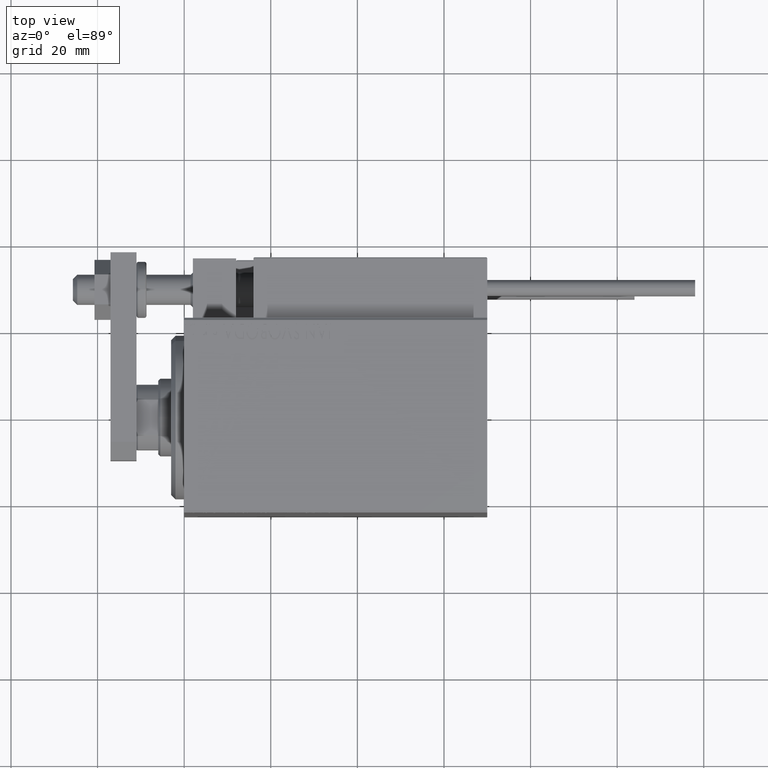
[diagram: clean part render]
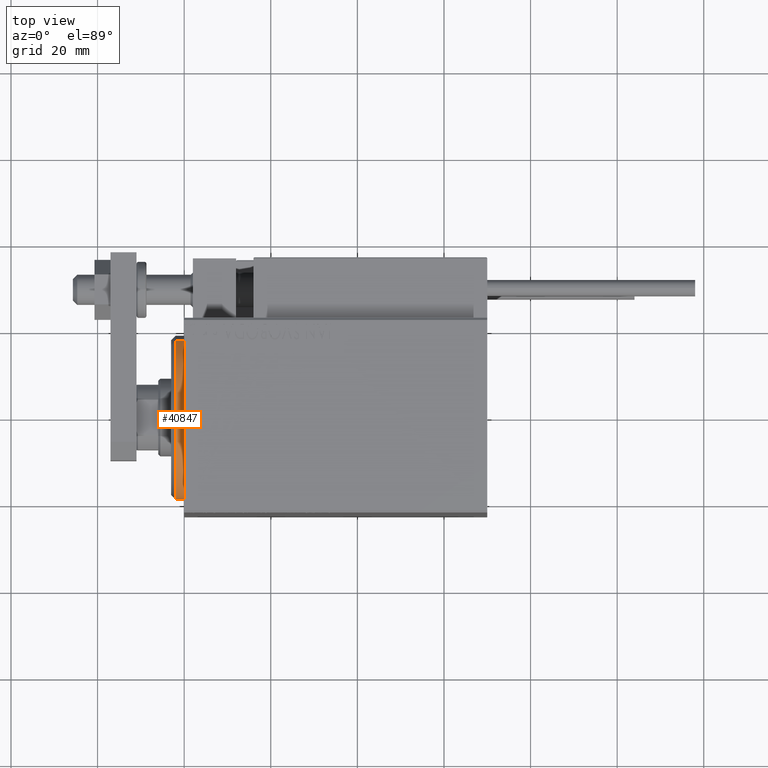
[diagram: same view with one face highlighted and labeled with its STEP entity id]
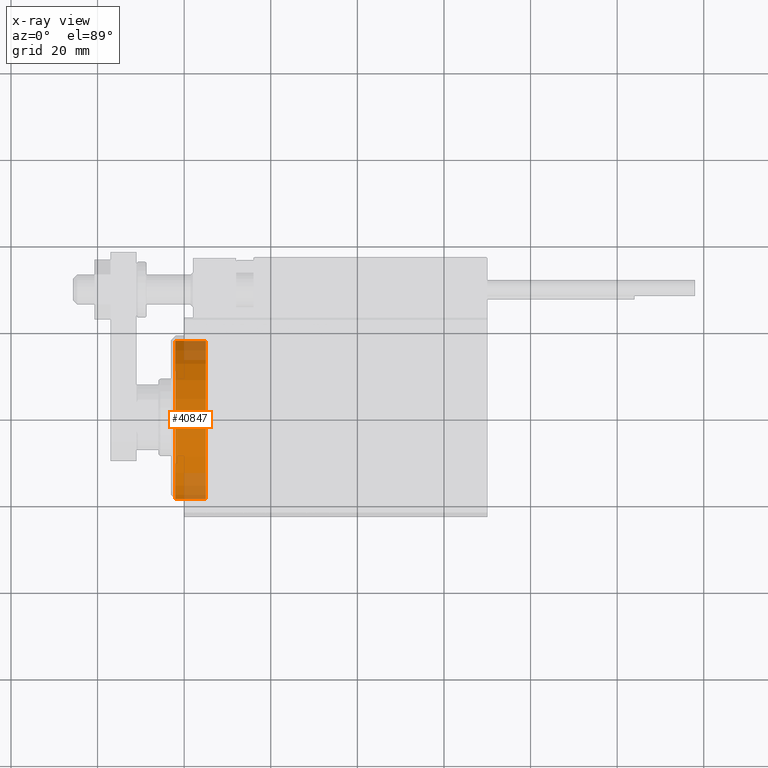
[diagram: x-ray of the same camera — body ghosted, the highlighted face saturated]
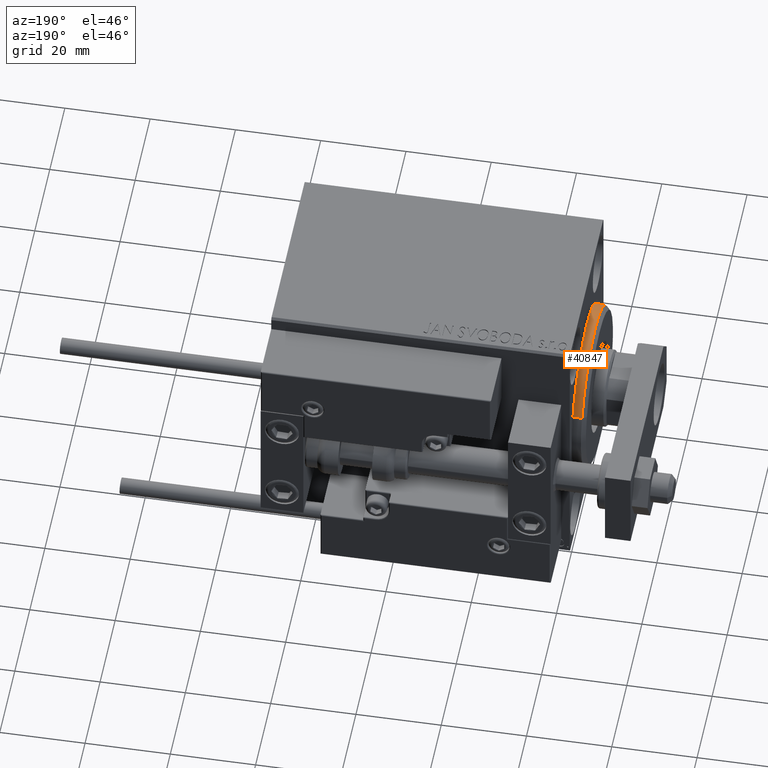
[diagram: same view with one face highlighted and labeled with its STEP entity id]
A machine part, top view. The second image highlights one B-rep face of the part: STEP entity #40847.
The next image is the same camera in x-ray: the body ghosted, the highlighted face saturated — about 21% of this face is hidden behind the body in this view.
A second angle (auxiliary view) of the same face is appended — the face is thin or edge-on in the first view.
In plain terms, the highlighted cylindrical surface (partial cylindrical patch) has radius 19 mm, axis along (1, 0, 0).
Its self-contained STEP definition (entity closure, byte-faithful):
#1561 = LINE ( 'NONE', #9451, #14067 ) ;
#3435 = EDGE_CURVE ( 'NONE', #45924, #34095, #16519, .T. ) ;
#5130 = CYLINDRICAL_SURFACE ( 'NONE', #27750, 19.00000000000000000 ) ;
#7944 = FACE_OUTER_BOUND ( 'NONE', #48380, .T. ) ;
#8402 = CARTESIAN_POINT ( 'NONE',  ( -5.000000000000000000, 0.000000000000000000, 0.000000000000000000 ) ) ;
#9451 = CARTESIAN_POINT ( 'NONE',  ( 3.000000000000000000, 2.326828918379970970E-15, -19.00000000000000000 ) ) ;
#10105 = EDGE_CURVE ( 'NONE', #12353, #43473, #1561, .T. ) ;
#12353 = VERTEX_POINT ( 'NONE', #44521 ) ;
#14067 = VECTOR ( 'NONE', #16845, 1000.000000000000000 ) ;
#14501 = ORIENTED_EDGE ( 'NONE', *, *, #3435, .T. ) ;
#15374 = AXIS2_PLACEMENT_3D ( 'NONE', #48729, #17699, #44642 ) ;
#16519 = LINE ( 'NONE', #20582, #44802 ) ;
#16845 = DIRECTION ( 'NONE',  ( -1.000000000000000000, -0.000000000000000000, -0.000000000000000000 ) ) ;
#17699 = DIRECTION ( 'NONE',  ( -1.000000000000000000, 0.000000000000000000, 0.000000000000000000 ) ) ;
#20582 = CARTESIAN_POINT ( 'NONE',  ( 3.000000000000000000, 0.000000000000000000, 19.00000000000000000 ) ) ;
#20643 = CARTESIAN_POINT ( 'NONE',  ( -5.000000000000000000, 0.000000000000000000, 19.00000000000000000 ) ) ;
#20669 = DIRECTION ( 'NONE',  ( -1.000000000000000000, -0.000000000000000000, -0.000000000000000000 ) ) ;
#24234 = DIRECTION ( 'NONE',  ( 0.000000000000000000, 0.000000000000000000, 1.000000000000000000 ) ) ;
#24433 = DIRECTION ( 'NONE',  ( 0.000000000000000000, 0.000000000000000000, 1.000000000000000000 ) ) ;
#27750 = AXIS2_PLACEMENT_3D ( 'NONE', #28054, #20669, #24234 ) ;
#28054 = CARTESIAN_POINT ( 'NONE',  ( 3.000000000000000000, 0.000000000000000000, 0.000000000000000000 ) ) ;
#31291 = DIRECTION ( 'NONE',  ( -1.000000000000000000, -0.000000000000000000, -0.000000000000000000 ) ) ;
#32076 = DIRECTION ( 'NONE',  ( -1.000000000000000000, 0.000000000000000000, 0.000000000000000000 ) ) ;
#32629 = EDGE_CURVE ( 'NONE', #12353, #45924, #46257, .T. ) ;
#33334 = CARTESIAN_POINT ( 'NONE',  ( 1.999999999999992228, 0.000000000000000000, 19.00000000000000000 ) ) ;
#34095 = VERTEX_POINT ( 'NONE', #20643 ) ;
#36055 = AXIS2_PLACEMENT_3D ( 'NONE', #8402, #32076, #24433 ) ;
#38501 = CIRCLE ( 'NONE', #36055, 19.00000000000000000 ) ;
#40847 = ADVANCED_FACE ( 'NONE', ( #7944 ), #5130, .T. ) ;
#41401 = ORIENTED_EDGE ( 'NONE', *, *, #47162, .F. ) ;
#43473 = VERTEX_POINT ( 'NONE', #49394 ) ;
#44521 = CARTESIAN_POINT ( 'NONE',  ( 1.999999999999992228, 2.326828918379970970E-15, -19.00000000000000000 ) ) ;
#44642 = DIRECTION ( 'NONE',  ( 0.000000000000000000, 0.000000000000000000, -1.000000000000000000 ) ) ;
#44802 = VECTOR ( 'NONE', #31291, 1000.000000000000000 ) ;
#45924 = VERTEX_POINT ( 'NONE', #33334 ) ;
#46257 = CIRCLE ( 'NONE', #15374, 19.00000000000000000 ) ;
#47162 = EDGE_CURVE ( 'NONE', #43473, #34095, #38501, .T. ) ;
#47771 = ORIENTED_EDGE ( 'NONE', *, *, #32629, .T. ) ;
#48030 = ORIENTED_EDGE ( 'NONE', *, *, #10105, .F. ) ;
#48380 = EDGE_LOOP ( 'NONE', ( #48030, #47771, #14501, #41401 ) ) ;
#48729 = CARTESIAN_POINT ( 'NONE',  ( 1.999999999999992228, 0.000000000000000000, 0.000000000000000000 ) ) ;
#49394 = CARTESIAN_POINT ( 'NONE',  ( -5.000000000000000000, 2.326828918379970970E-15, -19.00000000000000000 ) ) ;